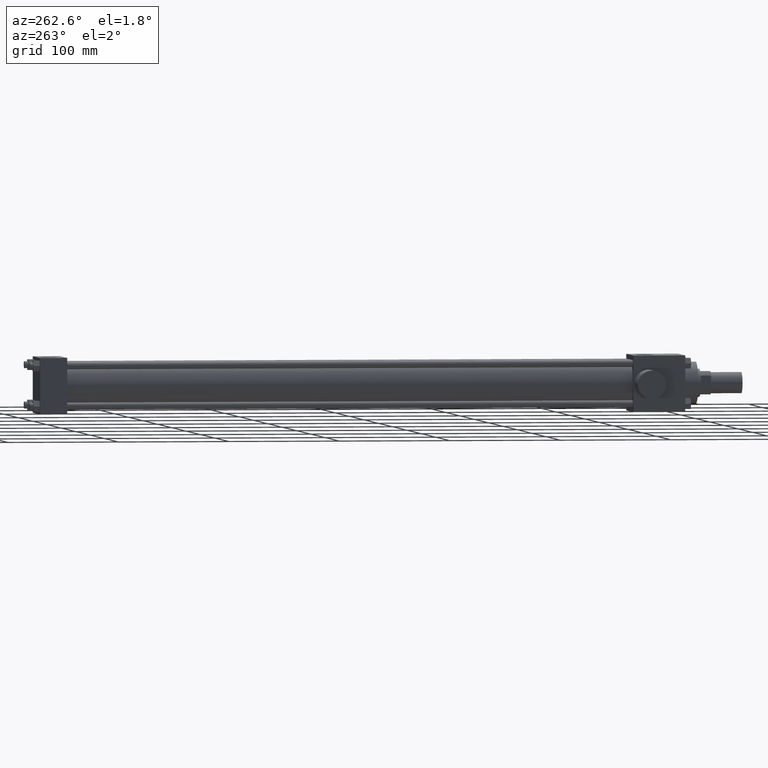
[diagram: clean part render]
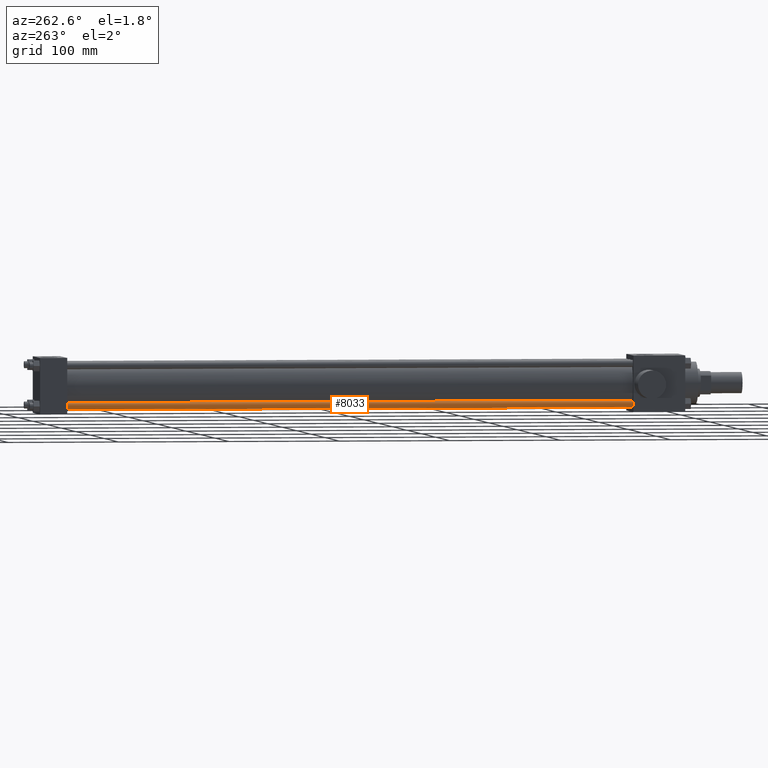
[diagram: same view with one face highlighted and labeled with its STEP entity id]
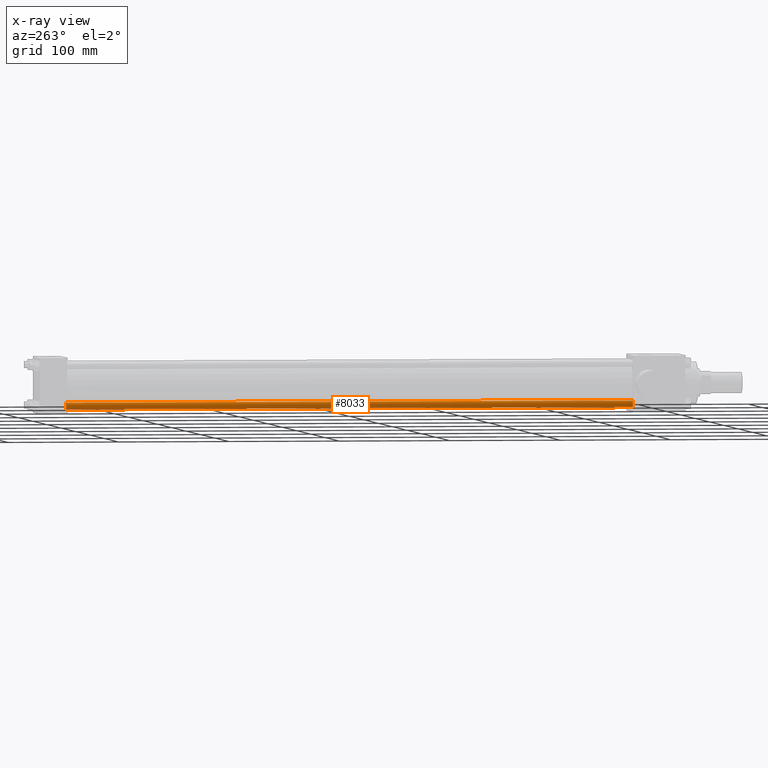
[diagram: x-ray of the same camera — body ghosted, the highlighted face saturated]
A machine part, auxiliary view. The second image highlights one B-rep face of the part: STEP entity #8033.
The next image is the same camera in x-ray: the body ghosted, the highlighted face saturated — about 0% of this face is hidden behind the body in this view.
In plain terms, the highlighted cylindrical surface (bore or boss wall) has radius 3.175 mm, axis along (0, -1, 0).
Its self-contained STEP definition (entity closure, byte-faithful):
#518=EDGE_CURVE('',#524,#524,#519,.T.);
#519=CIRCLE('',#520,3.175000000E+000);
#520=AXIS2_PLACEMENT_3D('',#521,#522,#523);
#521=CARTESIAN_POINT('',(-1.816100000E+001,7.223125000E+001,-1.816100000E+001));
#522=DIRECTION('',(0.0E+000,1.0E+000,0.0E+000));
#523=DIRECTION('',(1.0E+000,0.0E+000,0.0E+000));
#524=VERTEX_POINT('',#525);
#525=CARTESIAN_POINT('',(-1.498600000E+001,7.223125000E+001,-1.816100000E+001));
#2375=FACE_OUTER_BOUND('',#2377,.T.);
#2376=FACE_BOUND('',#2378,.T.);
#2377=EDGE_LOOP('',(#2379));
#2378=EDGE_LOOP('',(#2380));
#2379=ORIENTED_EDGE('',*,*,#2424,.F.);
#2380=ORIENTED_EDGE('',*,*,#518,.T.);
#2381=CYLINDRICAL_SURFACE('',#2382,3.175000000E+000);
#2382=AXIS2_PLACEMENT_3D('',#2383,#2384,#2385);
#2383=CARTESIAN_POINT('',(-1.816100000E+001,5.849937500E+002,-1.816100000E+001));
#2384=DIRECTION('',(0.0E+000,-1.0E+000,0.0E+000));
#2385=DIRECTION('',(0.0E+000,0.0E+000,-1.0E+000));
#2424=EDGE_CURVE('',#2430,#2430,#2425,.T.);
#2425=CIRCLE('',#2426,3.175000000E+000);
#2426=AXIS2_PLACEMENT_3D('',#2427,#2428,#2429);
#2427=CARTESIAN_POINT('',(-1.816100000E+001,5.849937500E+002,-1.816100000E+001));
#2428=DIRECTION('',(0.0E+000,1.0E+000,0.0E+000));
#2429=DIRECTION('',(1.0E+000,0.0E+000,0.0E+000));
#2430=VERTEX_POINT('',#2431);
#2431=CARTESIAN_POINT('',(-1.498600000E+001,5.849937500E+002,-1.816100000E+001));
#8033=ADVANCED_FACE('',(#2375,#2376),#2381,.T.);